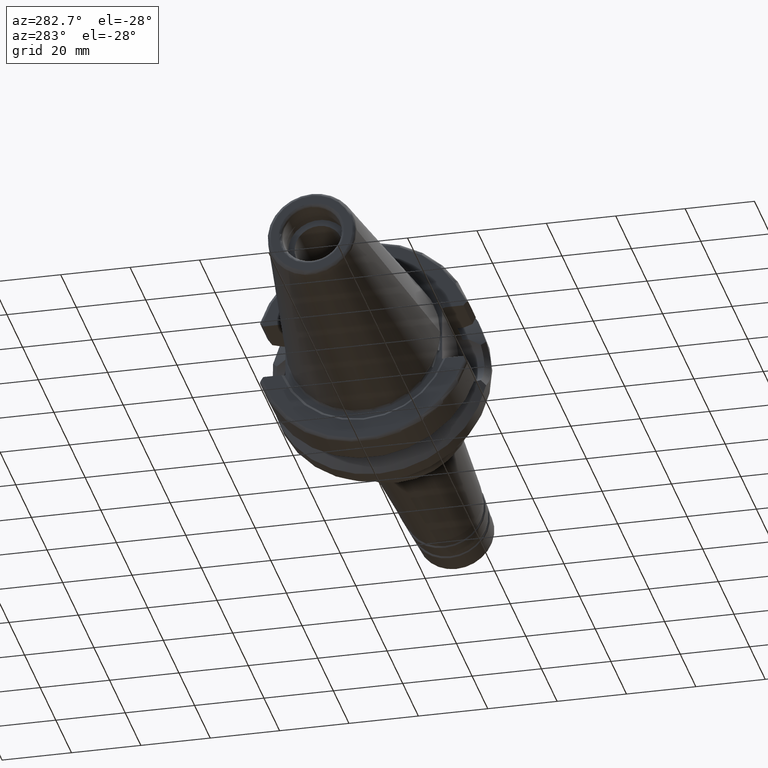
[diagram: clean part render]
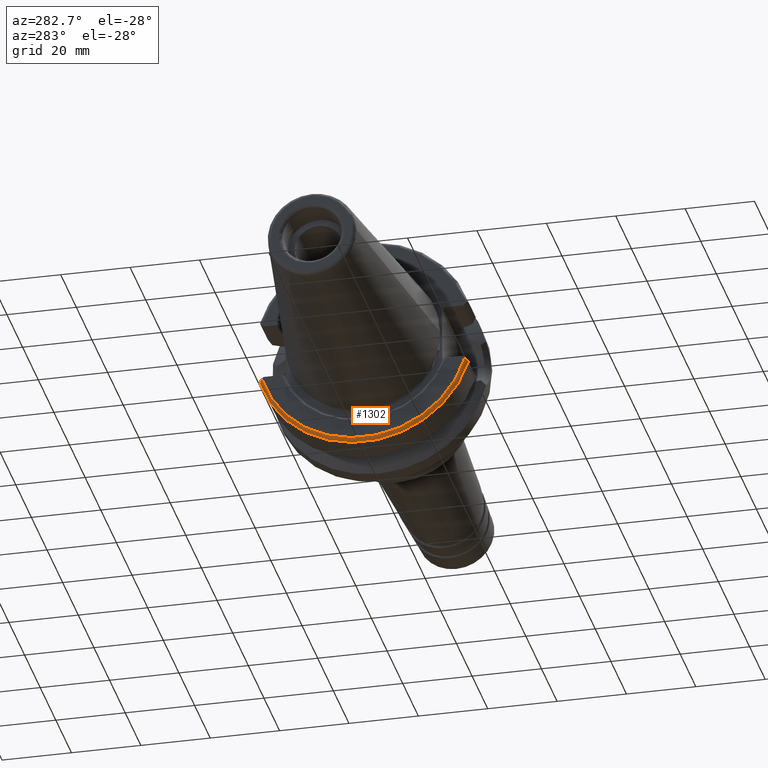
[diagram: same view with one face highlighted and labeled with its STEP entity id]
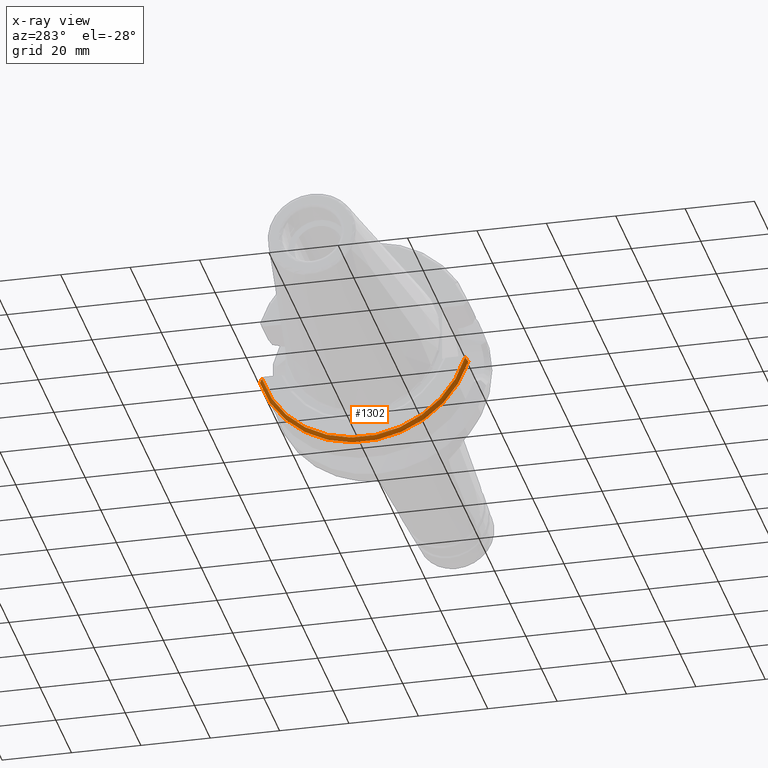
[diagram: x-ray of the same camera — body ghosted, the highlighted face saturated]
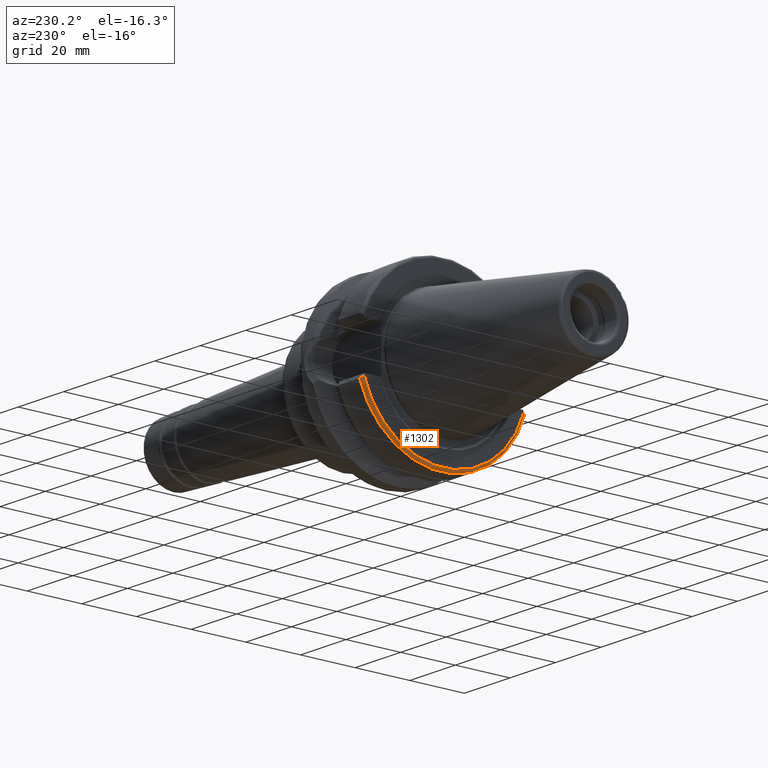
[diagram: same view with one face highlighted and labeled with its STEP entity id]
A machine part, auxiliary view. The second image highlights one B-rep face of the part: STEP entity #1302.
The next image is the same camera in x-ray: the body ghosted, the highlighted face saturated — about 0% of this face is hidden behind the body in this view.
A second angle (auxiliary view) of the same face is appended — the face is thin or edge-on in the first view.
In plain terms, the highlighted toroidal blend (fillet) surface has major radius 30.5 mm and minor (blend) radius 1 mm.
Its self-contained STEP definition (entity closure, byte-faithful):
#36=B_SPLINE_CURVE_WITH_KNOTS('',3,(#2244,#2245,#2246,#2247,#2248,#2249,
#2250,#2251,#2252,#2253),.UNSPECIFIED.,.F.,.F.,(4,2,2,2,4),(-0.166231853210586,
-0.116949965881853,-0.0730574737661982,-0.0345693522183143,0.),
 .UNSPECIFIED.);
#37=B_SPLINE_CURVE_WITH_KNOTS('',3,(#2272,#2273,#2274,#2275,#2276,#2277,
#2278,#2279,#2280,#2281),.UNSPECIFIED.,.F.,.F.,(4,2,2,2,4),(0.,0.0345693522183141,
0.0730574737661981,0.116949965881853,0.166231853210586),.UNSPECIFIED.);
#298=FACE_OUTER_BOUND('',#385,.T.);
#385=EDGE_LOOP('',(#1002,#1003,#1004,#1005));
#485=CIRCLE('',#1459,31.5);
#487=CIRCLE('',#1462,30.5);
#575=VERTEX_POINT('',#2242);
#576=VERTEX_POINT('',#2243);
#580=VERTEX_POINT('',#2264);
#582=VERTEX_POINT('',#2270);
#728=EDGE_CURVE('',#575,#576,#36,.T.);
#733=EDGE_CURVE('',#576,#580,#485,.T.);
#736=EDGE_CURVE('',#575,#582,#487,.T.);
#737=EDGE_CURVE('',#580,#582,#37,.T.);
#1002=ORIENTED_EDGE('',*,*,#728,.F.);
#1003=ORIENTED_EDGE('',*,*,#736,.T.);
#1004=ORIENTED_EDGE('',*,*,#737,.F.);
#1005=ORIENTED_EDGE('',*,*,#733,.F.);
#1259=TOROIDAL_SURFACE('',#1461,30.5,1.00000000000001);
#1302=ADVANCED_FACE('',(#298),#1259,.T.);
#1459=AXIS2_PLACEMENT_3D('',#2265,#1745,#1746);
#1461=AXIS2_PLACEMENT_3D('',#2269,#1750,#1751);
#1462=AXIS2_PLACEMENT_3D('',#2271,#1752,#1753);
#1745=DIRECTION('center_axis',(1.,0.,0.));
#1746=DIRECTION('ref_axis',(0.,0.,-1.));
#1750=DIRECTION('center_axis',(1.,0.,0.));
#1751=DIRECTION('ref_axis',(0.,0.,-1.));
#1752=DIRECTION('center_axis',(1.,0.,0.));
#1753=DIRECTION('ref_axis',(0.,0.,-1.));
#2242=CARTESIAN_POINT('',(0.999999999999992,-29.2635810473993,-8.59609354778619));
#2243=CARTESIAN_POINT('',(1.99999999999999,-30.0059801089944,-9.58598757033586));
#2244=CARTESIAN_POINT('Ctrl Pts',(0.999999999999988,-29.2635810473993,-8.59609354778619));
#2245=CARTESIAN_POINT('Ctrl Pts',(0.999999999999987,-29.3621429990468,-8.72751328123389));
#2246=CARTESIAN_POINT('Ctrl Pts',(1.03265244131678,-29.4787835094864,-8.88303845636436));
#2247=CARTESIAN_POINT('Ctrl Pts',(1.13925367477065,-29.6538085089851,-9.11641186665444));
#2248=CARTESIAN_POINT('Ctrl Pts',(1.22617276763936,-29.7453336353869,-9.23844889528912));
#2249=CARTESIAN_POINT('Ctrl Pts',(1.40782357323146,-29.868892414161,-9.40319869478268));
#2250=CARTESIAN_POINT('Ctrl Pts',(1.52925579784497,-29.9256717286954,-9.47890663538983));
#2251=CARTESIAN_POINT('Ctrl Pts',(1.7500257349215,-29.9873423518317,-9.56113650927783));
#2252=CARTESIAN_POINT('Ctrl Pts',(1.88476882593895,-30.0059801089944,-9.58598757033584));
#2253=CARTESIAN_POINT('Ctrl Pts',(1.99999999999999,-30.0059801089944,-9.58598757033584));
#2264=CARTESIAN_POINT('',(1.99999999999999,30.0059801089944,-9.58598757033586));
#2265=CARTESIAN_POINT('Origin',(1.99999999999999,0.,0.));
#2269=CARTESIAN_POINT('Origin',(1.99999999999999,0.,0.));
#2270=CARTESIAN_POINT('',(0.999999999999992,29.2635810473993,-8.59609354778619));
#2271=CARTESIAN_POINT('Origin',(0.999999999999992,0.,0.));
#2272=CARTESIAN_POINT('Ctrl Pts',(1.99999999999999,30.0059801089944,-9.58598757033584));
#2273=CARTESIAN_POINT('Ctrl Pts',(1.88476882593895,30.0059801089944,-9.58598757033584));
#2274=CARTESIAN_POINT('Ctrl Pts',(1.7500257349215,29.9873423518317,-9.56113650927783));
#2275=CARTESIAN_POINT('Ctrl Pts',(1.52925579784497,29.9256717286954,-9.47890663538983));
#2276=CARTESIAN_POINT('Ctrl Pts',(1.40782357323147,29.868892414161,-9.40319869478268));
#2277=CARTESIAN_POINT('Ctrl Pts',(1.22617276763937,29.7453336353869,-9.23844889528912));
#2278=CARTESIAN_POINT('Ctrl Pts',(1.13925367477065,29.6538085089851,-9.11641186665444));
#2279=CARTESIAN_POINT('Ctrl Pts',(1.03265244131678,29.4787835094864,-8.88303845636436));
#2280=CARTESIAN_POINT('Ctrl Pts',(0.999999999999988,29.3621429990468,-8.72751328123389));
#2281=CARTESIAN_POINT('Ctrl Pts',(0.999999999999988,29.2635810473993,-8.59609354778619));